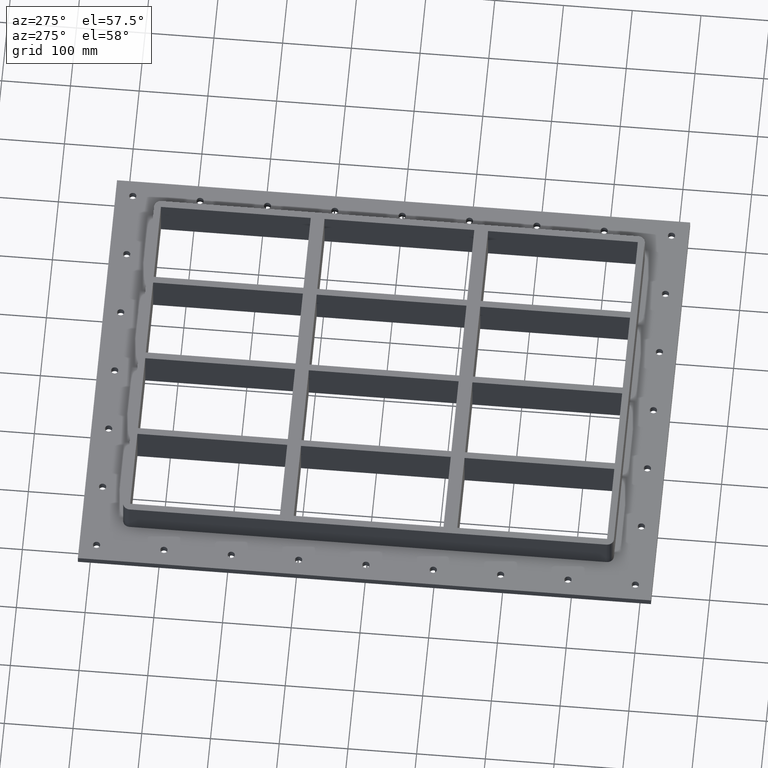
[diagram: clean part render]
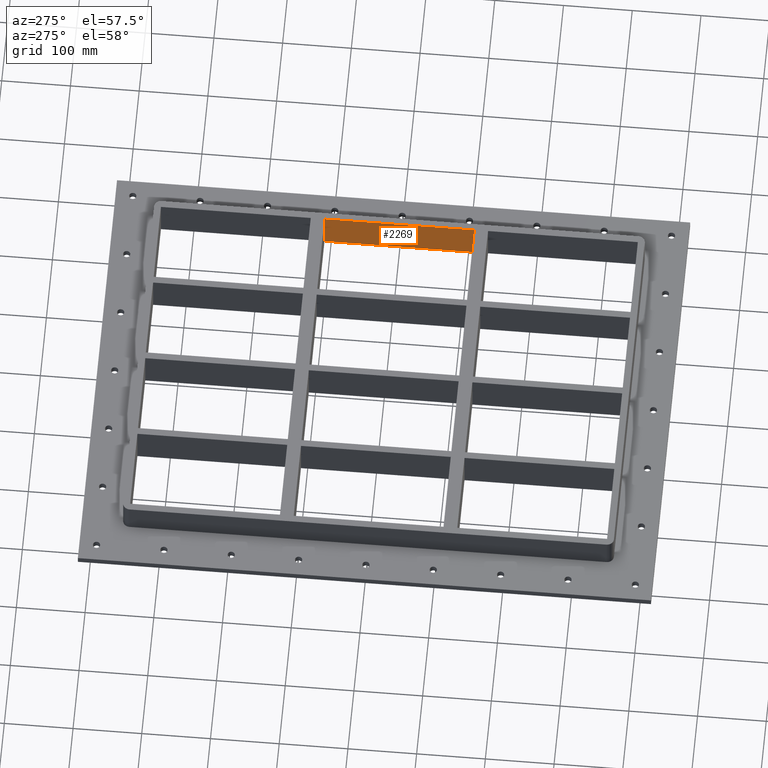
[diagram: same view with one face highlighted and labeled with its STEP entity id]
A machine part, auxiliary view. The second image highlights one B-rep face of the part: STEP entity #2269.
In plain terms, the highlighted planar face has unit normal (1, 0, 0).
Its self-contained STEP definition (entity closure, byte-faithful):
#1622=CARTESIAN_POINT('',(256.00000000000011,-108.99999999999989,-30.0));
#1623=VERTEX_POINT('',#1622);
#1630=CARTESIAN_POINT('',(256.00000000000006,109.00000000000013,-30.0));
#1631=VERTEX_POINT('',#1630);
#1632=CARTESIAN_POINT('',(256.00000000000011,-108.99999999999986,-30.0));
#1633=DIRECTION('',(0.0,1.0,0.0));
#1634=VECTOR('',#1633,218.0);
#1635=LINE('',#1632,#1634);
#1636=EDGE_CURVE('',#1623,#1631,#1635,.T.);
#2229=CARTESIAN_POINT('',(256.00000000000011,-108.99999999999989,30.0));
#2230=VERTEX_POINT('',#2229);
#2237=CARTESIAN_POINT('',(256.00000000000011,-108.99999999999989,30.0));
#2238=DIRECTION('',(0.0,0.0,-1.0));
#2239=VECTOR('',#2238,60.0);
#2240=LINE('',#2237,#2239);
#2241=EDGE_CURVE('',#2230,#1623,#2240,.T.);
#2246=CARTESIAN_POINT('',(256.00000000000006,109.00000000000013,30.0));
#2247=DIRECTION('',(1.0,0.0,0.0));
#2248=DIRECTION('',(0.0,-1.0,0.0));
#2249=AXIS2_PLACEMENT_3D('',#2246,#2247,#2248);
#2250=PLANE('',#2249);
#2251=ORIENTED_EDGE('',*,*,#1636,.F.);
#2252=ORIENTED_EDGE('',*,*,#2241,.F.);
#2253=CARTESIAN_POINT('',(256.00000000000006,109.00000000000013,30.0));
#2254=VERTEX_POINT('',#2253);
#2255=CARTESIAN_POINT('',(256.00000000000011,109.00000000000013,30.0));
#2256=DIRECTION('',(0.0,-1.0,0.0));
#2257=VECTOR('',#2256,218.0);
#2258=LINE('',#2255,#2257);
#2259=EDGE_CURVE('',#2254,#2230,#2258,.T.);
#2260=ORIENTED_EDGE('',*,*,#2259,.F.);
#2261=CARTESIAN_POINT('',(256.00000000000006,109.00000000000013,30.0));
#2262=DIRECTION('',(0.0,0.0,-1.0));
#2263=VECTOR('',#2262,60.0);
#2264=LINE('',#2261,#2263);
#2265=EDGE_CURVE('',#2254,#1631,#2264,.T.);
#2266=ORIENTED_EDGE('',*,*,#2265,.T.);
#2267=EDGE_LOOP('',(#2251,#2252,#2260,#2266));
#2268=FACE_OUTER_BOUND('',#2267,.T.);
#2269=ADVANCED_FACE('',(#2268),#2250,.F.);